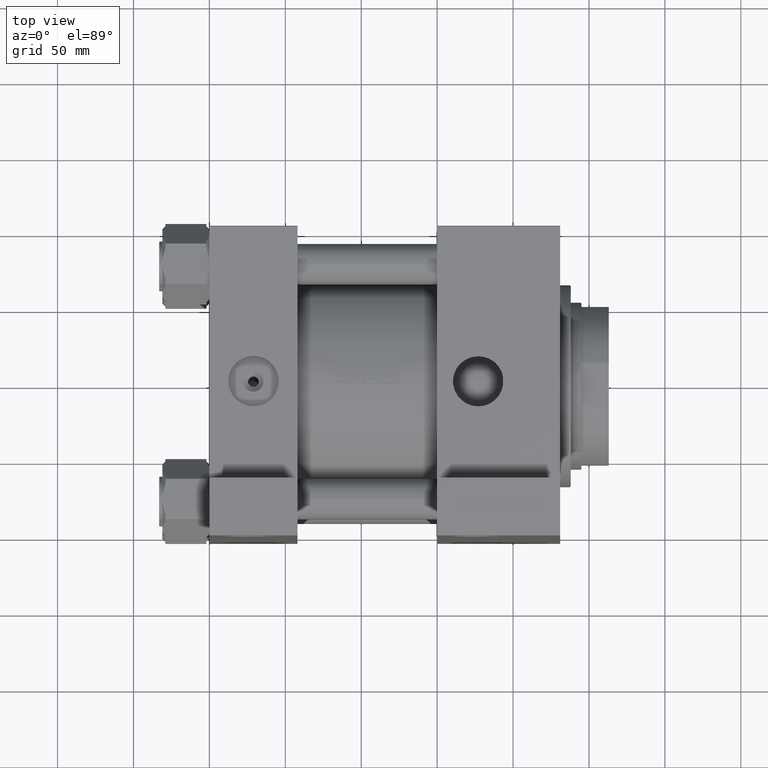
[diagram: clean part render]
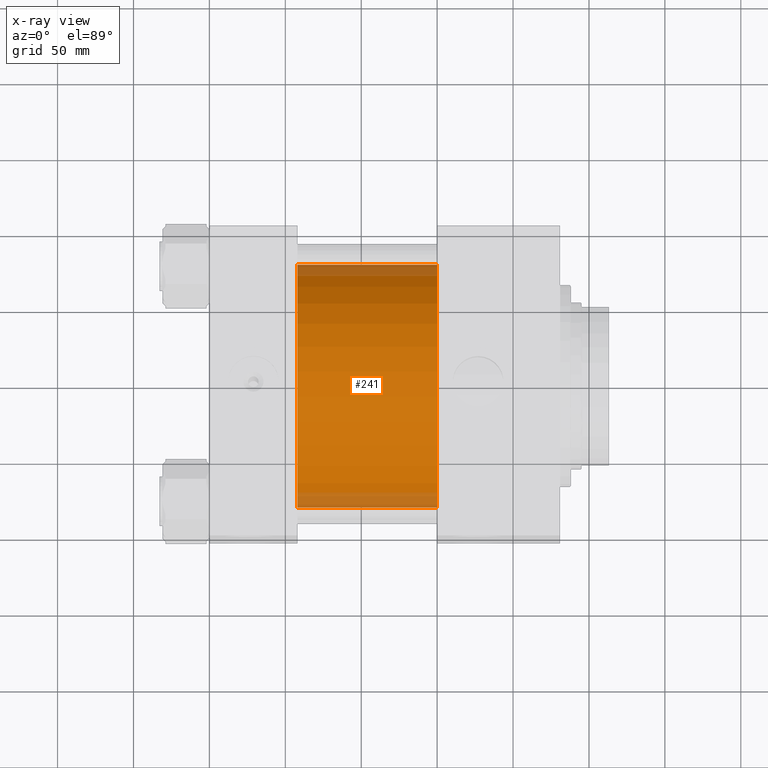
[diagram: x-ray — body ghosted, one internal face saturated and labeled with its STEP entity id]
A machine part, top view, then the same camera in x-ray: the body is ghosted and one INTERNAL B-rep face — a face not visible from any outside direction — is saturated and labeled: STEP entity #241.
In plain terms, the highlighted cylindrical surface (partial cylindrical patch) has radius 80 mm, axis along (-1, -0, 0).
Its self-contained STEP definition (entity closure, byte-faithful):
#241 = ADVANCED_FACE ( 'NONE', ( #28278 ), #4966, .F. ) ;
#2522 = CARTESIAN_POINT ( 'NONE',  ( 150.0000000000000000, 9.797174393178826052E-15, -81.49999999999995737 ) ) ;
#3643 = VECTOR ( 'NONE', #10282, 1000.000000000000000 ) ;
#4966 = CYLINDRICAL_SURFACE ( 'NONE', #8840, 80.00000000000000000 ) ;
#5457 = EDGE_CURVE ( 'NONE', #23564, #50141, #38694, .T. ) ;
#6592 = ORIENTED_EDGE ( 'NONE', *, *, #5457, .T. ) ;
#7415 = VECTOR ( 'NONE', #17979, 1000.000000000000000 ) ;
#7744 = ORIENTED_EDGE ( 'NONE', *, *, #29770, .F. ) ;
#8840 = AXIS2_PLACEMENT_3D ( 'NONE', #13558, #20429, #29026 ) ;
#10282 = DIRECTION ( 'NONE',  ( -1.000000000000000000, -0.000000000000000000, -0.000000000000000000 ) ) ;
#10546 = VERTEX_POINT ( 'NONE', #24381 ) ;
#10678 = ORIENTED_EDGE ( 'NONE', *, *, #19056, .T. ) ;
#13558 = CARTESIAN_POINT ( 'NONE',  ( 150.0000000000000000, 0.000000000000000000, -1.499999999999959588 ) ) ;
#14190 = EDGE_LOOP ( 'NONE', ( #10678, #6592, #47785, #7744 ) ) ;
#15493 = CARTESIAN_POINT ( 'NONE',  ( 58.00000000000000000, 9.797174393178826052E-15, -81.49999999999995737 ) ) ;
#17979 = DIRECTION ( 'NONE',  ( -1.000000000000000000, -0.000000000000000000, -0.000000000000000000 ) ) ;
#19056 = EDGE_CURVE ( 'NONE', #36833, #23564, #37399, .T. ) ;
#20429 = DIRECTION ( 'NONE',  ( -1.000000000000000000, -0.000000000000000000, -0.000000000000000000 ) ) ;
#22796 = DIRECTION ( 'NONE',  ( 0.000000000000000000, 0.000000000000000000, -1.000000000000000000 ) ) ;
#23564 = VERTEX_POINT ( 'NONE', #35530 ) ;
#24381 = CARTESIAN_POINT ( 'NONE',  ( 58.00000000000000000, 0.000000000000000000, 78.50000000000004263 ) ) ;
#25281 = AXIS2_PLACEMENT_3D ( 'NONE', #29839, #37689, #49118 ) ;
#27095 = CARTESIAN_POINT ( 'NONE',  ( 58.00000000000000000, 0.000000000000000000, -1.499999999999959588 ) ) ;
#27604 = CARTESIAN_POINT ( 'NONE',  ( 150.0000000000000000, 0.000000000000000000, 78.50000000000004263 ) ) ;
#28278 = FACE_OUTER_BOUND ( 'NONE', #14190, .T. ) ;
#29026 = DIRECTION ( 'NONE',  ( 0.000000000000000000, 0.000000000000000000, 1.000000000000000000 ) ) ;
#29594 = EDGE_CURVE ( 'NONE', #10546, #50141, #30393, .T. ) ;
#29770 = EDGE_CURVE ( 'NONE', #36833, #10546, #49622, .T. ) ;
#29839 = CARTESIAN_POINT ( 'NONE',  ( 150.0000000000000000, 0.000000000000000000, -1.499999999999959588 ) ) ;
#30393 = CIRCLE ( 'NONE', #36020, 80.00000000000000000 ) ;
#34716 = DIRECTION ( 'NONE',  ( 1.000000000000000000, 0.000000000000000000, 0.000000000000000000 ) ) ;
#35530 = CARTESIAN_POINT ( 'NONE',  ( 150.0000000000000000, 9.797174393178826052E-15, -81.49999999999995737 ) ) ;
#36020 = AXIS2_PLACEMENT_3D ( 'NONE', #27095, #34716, #22796 ) ;
#36833 = VERTEX_POINT ( 'NONE', #27604 ) ;
#37399 = CIRCLE ( 'NONE', #25281, 80.00000000000000000 ) ;
#37689 = DIRECTION ( 'NONE',  ( 1.000000000000000000, 0.000000000000000000, 0.000000000000000000 ) ) ;
#38694 = LINE ( 'NONE', #2522, #7415 ) ;
#46063 = CARTESIAN_POINT ( 'NONE',  ( 150.0000000000000000, 0.000000000000000000, 78.50000000000004263 ) ) ;
#47785 = ORIENTED_EDGE ( 'NONE', *, *, #29594, .F. ) ;
#49118 = DIRECTION ( 'NONE',  ( 0.000000000000000000, 0.000000000000000000, -1.000000000000000000 ) ) ;
#49622 = LINE ( 'NONE', #46063, #3643 ) ;
#50141 = VERTEX_POINT ( 'NONE', #15493 ) ;